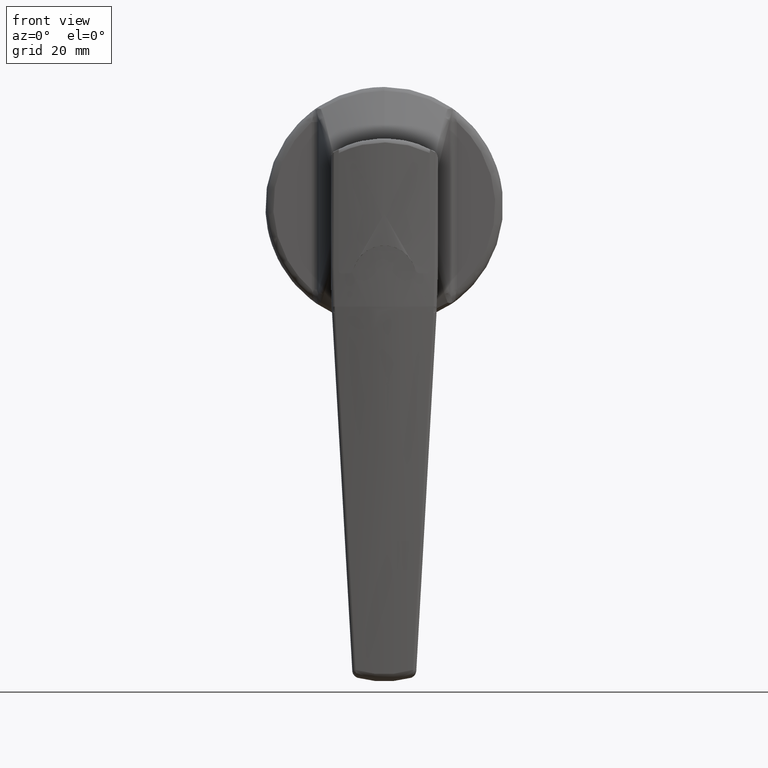
[diagram: clean part render]
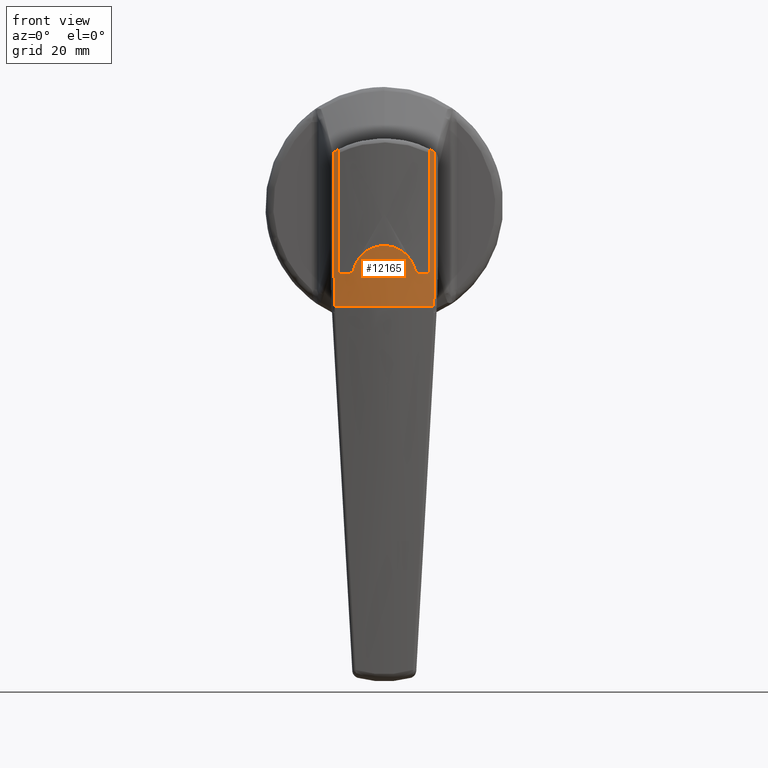
[diagram: same view with one face highlighted and labeled with its STEP entity id]
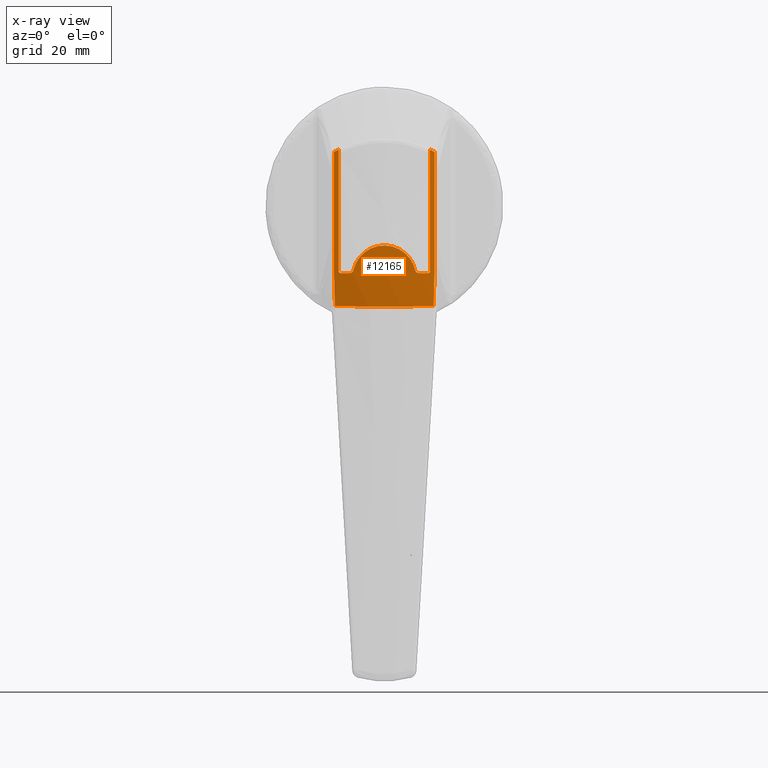
[diagram: x-ray of the same camera — body ghosted, the highlighted face saturated]
A machine part, front view. The second image highlights one B-rep face of the part: STEP entity #12165.
The next image is the same camera in x-ray: the body ghosted, the highlighted face saturated — about 0% of this face is hidden behind the body in this view.
In plain terms, the highlighted face is a freeform B-spline surface patch.
Its self-contained STEP definition (entity closure, byte-faithful):
#6346=CARTESIAN_POINT('',(-46.737944228150198,12.711864406779300,13.580230435014760));
#6347=VERTEX_POINT('',#6346);
#6355=CARTESIAN_POINT('',(-46.987604807803102,11.500000000000000,14.212189298501320));
#6356=VERTEX_POINT('',#6355);
#6357=CARTESIAN_POINT('',(-46.987604807803102,11.500000000000000,14.212189298501320));
#6358=CARTESIAN_POINT('',(-46.907535436885517,11.910008127982939,14.011899635421020));
#6359=CARTESIAN_POINT('',(-46.824209518062418,12.313935425094630,13.801235703954630));
#6360=CARTESIAN_POINT('',(-46.737944228150099,12.711864406779320,13.580230435014800));
#6361=QUASI_UNIFORM_CURVE('',3,(#6357,#6358,#6359,#6360),.UNSPECIFIED.,.F.,.U.);
#6362=EDGE_CURVE('',#6356,#6347,#6361,.T.);
#6417=CARTESIAN_POINT('',(-46.987604807803102,-11.500000000000000,14.212189298501320));
#6418=VERTEX_POINT('',#6417);
#6438=CARTESIAN_POINT('',(-46.737944228150099,-12.711864406779659,13.580230435014540));
#6439=VERTEX_POINT('',#6438);
#6440=CARTESIAN_POINT('',(-46.737944228150099,-12.711864406779659,13.580230435014540));
#6441=CARTESIAN_POINT('',(-46.824209518062453,-12.313935425094851,13.801235703954440));
#6442=CARTESIAN_POINT('',(-46.907535436885503,-11.910008127983071,14.011899635420839));
#6443=CARTESIAN_POINT('',(-46.987604807803102,-11.500000000000000,14.212189298501199));
#6444=QUASI_UNIFORM_CURVE('',3,(#6440,#6441,#6442,#6443),.UNSPECIFIED.,.F.,.U.);
#6445=EDGE_CURVE('',#6439,#6418,#6444,.T.);
#7847=CARTESIAN_POINT('',(-46.789193708711807,-12.473112755895860,-25.348999612156948));
#7848=VERTEX_POINT('',#7847);
#7862=CARTESIAN_POINT('',(-46.789193708711807,12.473112755895860,-25.348999612156948));
#7863=VERTEX_POINT('',#7862);
#7864=CARTESIAN_POINT('',(-46.789193708711807,12.473112755895860,-25.348999612156948));
#7865=CARTESIAN_POINT('',(-49.440082773459139,7.459311E-014,-25.459076386904989));
#7866=CARTESIAN_POINT('',(-46.789193708711807,-12.473112755895860,-25.348999612156948));
#7874=(BOUNDED_CURVE()B_SPLINE_CURVE(2,(#7864,#7865,#7866),.UNSPECIFIED.,.F.,.U.)CURVE()GEOMETRIC_REPRESENTATION_ITEM()QUASI_UNIFORM_CURVE()RATIONAL_B_SPLINE_CURVE((1.0,0.978153228478532,1.0))REPRESENTATION_ITEM(''));
#7875=EDGE_CURVE('',#7863,#7848,#7874,.T.);
#8068=CARTESIAN_POINT('',(-46.737944228150099,12.711864406779640,-15.685443348486450));
#8069=VERTEX_POINT('',#8068);
#8093=CARTESIAN_POINT('',(-46.737944228150099,12.711864406779640,-15.685443348486450));
#8094=CARTESIAN_POINT('',(-46.737944228150099,12.711864406779640,-18.908685599115561));
#8095=CARTESIAN_POINT('',(-46.755367672646017,12.632272928814530,-22.129869028054429));
#8096=CARTESIAN_POINT('',(-46.789193708711807,12.473112755895860,-25.348999612156948));
#8097=QUASI_UNIFORM_CURVE('',3,(#8093,#8094,#8095,#8096),.UNSPECIFIED.,.F.,.U.);
#8098=EDGE_CURVE('',#8069,#7863,#8097,.T.);
#8263=CARTESIAN_POINT('',(-46.737944228150099,-12.711864406779659,-15.685443348486549));
#8264=VERTEX_POINT('',#8263);
#8278=CARTESIAN_POINT('',(-46.789193708711807,-12.473112755895860,-25.348999612156948));
#8279=CARTESIAN_POINT('',(-46.755367672646017,-12.632272928814530,-22.129869028054461));
#8280=CARTESIAN_POINT('',(-46.737944228150099,-12.711864406779640,-18.908685599115628));
#8281=CARTESIAN_POINT('',(-46.737944228150099,-12.711864406779640,-15.685443348486549));
#8282=QUASI_UNIFORM_CURVE('',3,(#8278,#8279,#8280,#8281),.UNSPECIFIED.,.F.,.U.);
#8283=EDGE_CURVE('',#7848,#8264,#8282,.T.);
#8310=CARTESIAN_POINT('',(-46.737944228150198,12.711864406779300,13.580230435014760));
#8311=CARTESIAN_POINT('',(-46.737944228150099,12.711864406779640,-15.685443348486450));
#8312=QUASI_UNIFORM_CURVE('',1,(#8310,#8311),.UNSPECIFIED.,.F.,.U.);
#8313=EDGE_CURVE('',#6347,#8069,#8312,.T.);
#8544=CARTESIAN_POINT('',(-46.737944228150099,-12.711864406779659,-15.685443348486549));
#8545=CARTESIAN_POINT('',(-46.737944228150099,-12.711864406779659,13.580230435014540));
#8546=QUASI_UNIFORM_CURVE('',1,(#8544,#8545),.UNSPECIFIED.,.F.,.U.);
#8547=EDGE_CURVE('',#8264,#6439,#8546,.T.);
#11925=CARTESIAN_POINT('',(-46.456397862511935,-13.947430892899519,-26.393820640584902));
#11926=CARTESIAN_POINT('',(-46.456397862511935,-13.947430892899519,15.227339546978479));
#11927=CARTESIAN_POINT('',(-49.790181097762535,0.001201106610649,-26.393820640584909));
#11928=CARTESIAN_POINT('',(-49.790181097762535,0.001201106610649,15.227339546978479));
#11929=CARTESIAN_POINT('',(-46.455854705859217,13.949703278157740,-26.393820640584899));
#11930=CARTESIAN_POINT('',(-46.455854705859217,13.949703278157740,15.227339546978477));
#11938=(BOUNDED_SURFACE()B_SPLINE_SURFACE(1,2,((#11925,#11927,#11929),(#11926,#11928,#11930)),.UNSPECIFIED.,.F.,.F.,.U.)B_SPLINE_SURFACE_WITH_KNOTS((2,2),(3,3),(0.0,41.621160187563383),(0.0,28.284596819175309),.UNSPECIFIED.)GEOMETRIC_REPRESENTATION_ITEM()RATIONAL_B_SPLINE_SURFACE(((0.998720601012470,0.970422249453974,0.996797802733869),(0.998720601012470,0.970422249453974,0.996797802733869)))REPRESENTATION_ITEM('')SURFACE());
#11939=CARTESIAN_POINT('',(-46.987604807803102,11.500000000000000,-16.500000000000000));
#11940=VERTEX_POINT('',#11939);
#11941=CARTESIAN_POINT('',(-46.987604807803102,11.500000000000000,-16.500000000000000));
#11942=CARTESIAN_POINT('',(-46.987604807803102,11.500000000000000,14.212189298501320));
#11943=QUASI_UNIFORM_CURVE('',1,(#11941,#11942),.UNSPECIFIED.,.F.,.U.);
#11944=EDGE_CURVE('',#11940,#6356,#11943,.T.);
#11945=ORIENTED_EDGE('',*,*,#11944,.T.);
#11946=ORIENTED_EDGE('',*,*,#6362,.T.);
#11947=ORIENTED_EDGE('',*,*,#8313,.T.);
#11948=ORIENTED_EDGE('',*,*,#8098,.T.);
#11949=ORIENTED_EDGE('',*,*,#7875,.T.);
#11950=ORIENTED_EDGE('',*,*,#8283,.T.);
#11951=ORIENTED_EDGE('',*,*,#8547,.T.);
#11952=ORIENTED_EDGE('',*,*,#6445,.T.);
#11953=CARTESIAN_POINT('',(-46.987604807803102,-11.500000000000000,-16.500000000000000));
#11954=VERTEX_POINT('',#11953);
#11955=CARTESIAN_POINT('',(-46.987604807803102,-11.500000000000000,14.212189298501320));
#11956=CARTESIAN_POINT('',(-46.987604807803102,-11.500000000000000,-16.500000000000000));
#11957=QUASI_UNIFORM_CURVE('',1,(#11955,#11956),.UNSPECIFIED.,.F.,.U.);
#11958=EDGE_CURVE('',#6418,#11954,#11957,.T.);
#11959=ORIENTED_EDGE('',*,*,#11958,.T.);
#11960=CARTESIAN_POINT('',(-47.083048412234497,-11.0,-17.0));
#11961=VERTEX_POINT('',#11960);
#11962=CARTESIAN_POINT('',(-46.987604807803137,-11.500000000000000,-16.500000000000000));
#11963=CARTESIAN_POINT('',(-46.987604807803130,-11.500000000000000,-16.533168155083150));
#11964=CARTESIAN_POINT('',(-46.988253140221090,-11.496681493384960,-16.566212240134170));
#11965=CARTESIAN_POINT('',(-46.990142642642482,-11.486997446939609,-16.614466712750801));
#11966=CARTESIAN_POINT('',(-46.990926280092900,-11.482979838626120,-16.630392546573809));
#11967=CARTESIAN_POINT('',(-46.992804620393592,-11.473342496664980,-16.661921652573930));
#11968=CARTESIAN_POINT('',(-46.993906973961103,-11.467683437488811,-16.677608474726568));
#11969=CARTESIAN_POINT('',(-46.997624401956173,-11.448581052962879,-16.723305420684120));
#11970=CARTESIAN_POINT('',(-47.000645243871013,-11.433037067885669,-16.752091912400591));
#11971=CARTESIAN_POINT('',(-47.007730366214084,-11.396475325354540,-16.806396394962171));
#11972=CARTESIAN_POINT('',(-47.011837856456111,-11.375232579993741,-16.832059675884459));
#11973=CARTESIAN_POINT('',(-47.020759452422247,-11.328930285959039,-16.877978814771630));
#11974=CARTESIAN_POINT('',(-47.025599489985282,-11.303738085714810,-16.898513610972849));
#11975=CARTESIAN_POINT('',(-47.036029574865957,-11.249230547691550,-16.934688459637108));
#11976=CARTESIAN_POINT('',(-47.041560657236403,-11.220220761787310,-16.950054188585561));
#11977=CARTESIAN_POINT('',(-47.052915465305077,-11.160407017421550,-16.974674146491580));
#11978=CARTESIAN_POINT('',(-47.058809707825709,-11.129232763415629,-16.984114553352271));
#11979=CARTESIAN_POINT('',(-47.070876045104242,-11.065118279477890,-16.996817489210411));
#11980=CARTESIAN_POINT('',(-47.076945364277861,-11.032725124826371,-17.0));
#11981=CARTESIAN_POINT('',(-47.083048412234497,-11.0,-17.0));
#11982=B_SPLINE_CURVE_WITH_KNOTS('',3,(#11962,#11963,#11964,#11965,#11966,#11967,#11968,#11969,#11970,#11971,#11972,#11973,#11974,#11975,#11976,#11977,#11978,#11979,#11980,#11981),.UNSPECIFIED.,.F.,.U.,(4,2,2,2,2,2,2,2,2,4),(0.0,0.125000000000000,0.187500000000000,0.250000000000000,0.375000000000000,0.500000000000000,0.625000000000000,0.750000000000000,0.875000000000000,1.0),.UNSPECIFIED.);
#11983=EDGE_CURVE('',#11954,#11961,#11982,.T.);
#11984=ORIENTED_EDGE('',*,*,#11983,.T.);
#11985=CARTESIAN_POINT('',(-47.454865064278401,-8.774963999999999,-17.0));
#11986=VERTEX_POINT('',#11985);
#11987=CARTESIAN_POINT('',(-47.083048412234511,-10.999999999999989,-17.0));
#11988=CARTESIAN_POINT('',(-47.289874739325832,-9.890977521477094,-16.999999999999996));
#11989=CARTESIAN_POINT('',(-47.454865064278458,-8.774964000000022,-17.0));
#11997=(BOUNDED_CURVE()B_SPLINE_CURVE(2,(#11987,#11988,#11989),.UNSPECIFIED.,.F.,.U.)CURVE()GEOMETRIC_REPRESENTATION_ITEM()QUASI_UNIFORM_CURVE()RATIONAL_B_SPLINE_CURVE((1.0,0.999823281856737,1.0))REPRESENTATION_ITEM(''));
#11998=EDGE_CURVE('',#11961,#11986,#11997,.T.);
#11999=ORIENTED_EDGE('',*,*,#11998,.T.);
#12000=CARTESIAN_POINT('',(-47.590843779780101,-7.799968356974010,-16.222222277616101));
#12001=VERTEX_POINT('',#12000);
#12002=CARTESIAN_POINT('',(-47.454865064278401,-8.774963999999999,-17.0));
#12003=CARTESIAN_POINT('',(-47.471530827238936,-8.662234863821755,-17.0));
#12004=CARTESIAN_POINT('',(-47.487415349799711,-8.552571933962362,-16.981467891168190));
#12005=CARTESIAN_POINT('',(-47.510145720473027,-8.392704130729717,-16.925776298817990));
#12006=CARTESIAN_POINT('',(-47.517343816052282,-8.341563738080323,-16.902924314429558));
#12007=CARTESIAN_POINT('',(-47.530975062113967,-8.243884698236004,-16.849154214414561));
#12008=CARTESIAN_POINT('',(-47.537419439995453,-8.197265971100762,-16.818208582672721));
#12009=CARTESIAN_POINT('',(-47.549570394716667,-8.108673070888017,-16.747834670991161));
#12010=CARTESIAN_POINT('',(-47.555136017590797,-8.067727125067975,-16.709186329380600));
#12011=CARTESIAN_POINT('',(-47.565222367749953,-7.993043762474335,-16.625883367083478));
#12012=CARTESIAN_POINT('',(-47.569760933991347,-7.959174925207949,-16.581125349781640));
#12013=CARTESIAN_POINT('',(-47.577825417902041,-7.898684358404784,-16.485131401204519));
#12014=CARTESIAN_POINT('',(-47.581261399860352,-7.872738546361891,-16.434898576227148));
#12015=CARTESIAN_POINT('',(-47.586934724163463,-7.829755236340550,-16.331252070028651));
#12016=CARTESIAN_POINT('',(-47.589187219837939,-7.812603043267405,-16.277658385959679));
#12017=CARTESIAN_POINT('',(-47.590843779780101,-7.799968356974010,-16.222222277616101));
#12018=B_SPLINE_CURVE_WITH_KNOTS('',3,(#12002,#12003,#12004,#12005,#12006,#12007,#12008,#12009,#12010,#12011,#12012,#12013,#12014,#12015,#12016,#12017),.UNSPECIFIED.,.F.,.U.,(4,2,2,2,2,2,2,4),(0.0,0.250000000000005,0.375000000000004,0.500000000000003,0.625000000000002,0.750000000000002,0.875000000000001,1.0),.UNSPECIFIED.);
#12019=EDGE_CURVE('',#11986,#12001,#12018,.T.);
#12020=ORIENTED_EDGE('',*,*,#12019,.T.);
#12021=CARTESIAN_POINT('',(-47.590843832434203,7.799967955378261,-16.222222215297901));
#12022=VERTEX_POINT('',#12021);
#12023=CARTESIAN_POINT('',(-47.590843832434203,7.799967955378261,-16.222222215297901));
#12024=CARTESIAN_POINT('',(-47.597358556445400,7.750279749943561,-16.004214410774289));
#12025=CARTESIAN_POINT('',(-47.605008431222693,7.691467744428758,-15.788286963392199));
#12026=CARTESIAN_POINT('',(-47.618080542453427,7.589417939334571,-15.467546052328141));
#12027=CARTESIAN_POINT('',(-47.622704112074103,7.553093005355643,-15.361158138710911));
#12028=CARTESIAN_POINT('',(-47.632465676715192,7.475764122268892,-15.149447228230780));
#12029=CARTESIAN_POINT('',(-47.637610702028532,7.434703591847748,-15.043988443142149));
#12030=CARTESIAN_POINT('',(-47.664498849830380,7.218099919474414,-14.520893402170730));
#12031=CARTESIAN_POINT('',(-47.689334624132812,7.012015678141431,-14.123001897269740));
#12032=CARTESIAN_POINT('',(-47.729827502270098,6.655671510362775,-13.555688322595490));
#12033=CARTESIAN_POINT('',(-47.743866620151877,6.528976039703494,-13.371532103213170));
#12034=CARTESIAN_POINT('',(-47.765523253139428,6.326920523560443,-13.102792888982350));
#12035=CARTESIAN_POINT('',(-47.772841765490767,6.257563972999885,-13.014463985564710));
#12036=CARTESIAN_POINT('',(-47.787641605497889,6.114784609380857,-12.840340572450881));
#12037=CARTESIAN_POINT('',(-47.795135718518203,6.041233548419172,-12.754403618972029));
#12038=CARTESIAN_POINT('',(-47.832773087075410,5.664584640519917,-12.332811303867590));
#12039=CARTESIAN_POINT('',(-47.863010034259567,5.339028566039022,-12.025549572746360));
#12040=CARTESIAN_POINT('',(-47.906690286444132,4.815645914864320,-11.607866130405000));
#12041=CARTESIAN_POINT('',(-47.920972817342943,4.635310959345009,-11.475880420937060));
#12042=CARTESIAN_POINT('',(-47.941750410587851,4.355873267519017,-11.288895093187170));
#12043=CARTESIAN_POINT('',(-47.948568537129631,4.261236186628613,-11.228401295971761));
#12044=CARTESIAN_POINT('',(-47.961950055306588,4.068934179575344,-11.111135253983161));
#12045=CARTESIAN_POINT('',(-47.968523417176591,3.971114337486013,-11.054277960243819));
#12046=CARTESIAN_POINT('',(-48.000540232206589,3.476032744429412,-10.780439340325371));
#12047=CARTESIAN_POINT('',(-48.023053453218402,3.066900519645967,-10.597715139438041));
#12048=CARTESIAN_POINT('',(-48.050970040059823,2.434285263587317,-10.376078420913620));
#12049=CARTESIAN_POINT('',(-48.059300967155863,2.220243382148899,-10.310989885380730));
#12050=CARTESIAN_POINT('',(-48.070186092346667,1.894358291295092,-10.226712666517789));
#12051=CARTESIAN_POINT('',(-48.073545890598403,1.784925168758568,-10.200849131355790));
#12052=CARTESIAN_POINT('',(-48.079702723028767,1.564425072310910,-10.153645029501501));
#12053=CARTESIAN_POINT('',(-48.082502776354929,1.453221582618008,-10.132281505141410));
#12054=CARTESIAN_POINT('',(-48.094997425920617,0.894516853728764,-10.037249462728161));
#12055=CARTESIAN_POINT('',(-48.099999505135237,0.447376472103989,-10.000003711485670));
#12056=CARTESIAN_POINT('',(-48.100000247377309,-0.223588675312950,-9.999998144670176));
#12057=CARTESIAN_POINT('',(-48.098749996372668,-0.447286385760757,-10.009358626373530));
#12058=CARTESIAN_POINT('',(-48.094996356114777,-0.782897687634330,-10.037608721062719));
#12059=CARTESIAN_POINT('',(-48.093432091046417,-0.894778924874433,-10.049396754409081));
#12060=CARTESIAN_POINT('',(-48.089676941302500,-1.118563304225249,-10.077782038618160));
#12061=CARTESIAN_POINT('',(-48.087482492978388,-1.230622947604273,-10.094406333849580));
#12062=CARTESIAN_POINT('',(-48.074981568126660,-1.789247008060825,-10.189487852943980));
#12063=CARTESIAN_POINT('',(-48.060278276504583,-2.223368740396586,-10.302177318735170));
#12064=CARTESIAN_POINT('',(-48.032350758538122,-2.856206827851718,-10.523901873067400));
#12065=CARTESIAN_POINT('',(-48.022061692321010,-3.064078463156043,-10.606641077332251));
#12066=CARTESIAN_POINT('',(-48.005303023683410,-3.371228739249628,-10.744147187642289));
#12067=CARTESIAN_POINT('',(-47.999495974488738,-3.472834956695392,-10.792218390453639));
#12068=CARTESIAN_POINT('',(-47.987464888919192,-3.674472725808426,-10.892894502355389));
#12069=CARTESIAN_POINT('',(-47.981228723311112,-3.774689901731595,-10.945603310843429));
#12070=CARTESIAN_POINT('',(-47.949211905143670,-4.269570308237114,-11.219475431907849));
#12071=CARTESIAN_POINT('',(-47.921225857731962,-4.641504273962630,-11.468859968508170));
#12072=CARTESIAN_POINT('',(-47.877536968054351,-5.164952109617704,-11.886645134265660));
#12073=CARTESIAN_POINT('',(-47.862687518611573,-5.333660260106096,-12.033232538132870));
#12074=CARTESIAN_POINT('',(-47.840212481011918,-5.577965626275286,-12.264247137415239));
#12075=CARTESIAN_POINT('',(-47.832687369135577,-5.657939335882466,-12.343110056572510));
#12076=CARTESIAN_POINT('',(-47.817609454106623,-5.814923813276502,-12.504607165418740));
#12077=CARTESIAN_POINT('',(-47.810041304921768,-5.892087156819278,-12.587414288164201));
#12078=CARTESIAN_POINT('',(-47.772419475500563,-6.268487307493433,-13.008961100114220));
#12079=CARTESIAN_POINT('',(-47.743293836233534,-6.537172711973367,-13.366993604562261));
#12080=CARTESIAN_POINT('',(-47.702813245418270,-6.893397921718830,-13.934177952193849));
#12081=CARTESIAN_POINT('',(-47.689853117564986,-7.004295476946335,-14.128289834871170));
#12082=CARTESIAN_POINT('',(-47.671430999011513,-7.158721684445018,-14.427147144446071));
#12083=CARTESIAN_POINT('',(-47.665460021220603,-7.208207755344973,-14.528049521639209));
#12084=CARTESIAN_POINT('',(-47.653894901412748,-7.303142382244063,-14.732461092339429));
#12085=CARTESIAN_POINT('',(-47.648290872246669,-7.348670379552937,-14.836164713335609));
#12086=CARTESIAN_POINT('',(-47.621425021002331,-7.565077522235559,-15.359060171463810));
#12087=CARTESIAN_POINT('',(-47.603869852650277,-7.700617689033234,-15.786322976806440));
#12088=CARTESIAN_POINT('',(-47.590843779780123,-7.799968356973992,-16.222222277616108));
#12089=B_SPLINE_CURVE_WITH_KNOTS('',3,(#12023,#12024,#12025,#12026,#12027,#12028,#12029,#12030,#12031,#12032,#12033,#12034,#12035,#12036,#12037,#12038,#12039,#12040,#12041,#12042,#12043,#12044,#12045,#12046,#12047,#12048,#12049,#12050,#12051,#12052,#12053,#12054,#12055,#12056,#12057,#12058,#12059,#12060,#12061,#12062,#12063,#12064,#12065,#12066,#12067,#12068,#12069,#12070,#12071,#12072,#12073,#12074,#12075,#12076,#12077,#12078,#12079,#12080,#12081,#12082,#12083,#12084,#12085,#12086,#12087,#12088),.UNSPECIFIED.,.F.,.U.,(4,2,2,2,2,2,2,2,2,2,2,2,2,2,2,2,2,2,2,2,2,2,2,2,2,2,2,2,2,2,2,2,4),(0.0,0.031250000000000,0.046875000000000,0.062500000000001,0.125000000000001,0.156250000000001,0.171875000000001,0.187500000000001,0.250000000000001,0.281250000000001,0.296875000000001,0.312500000000001,0.375000000000001,0.406250000000001,0.421875000000001,0.437500000000001,0.500000000000001,0.531250000000001,0.546875000000001,0.562500000000001,0.625000000000001,0.656250000000001,0.671875000000001,0.687500000000001,0.750000000000001,0.781250000000001,0.796875000000001,0.812500000000001,0.875000000000000,0.906250000000000,0.921875000000000,0.937500000000000,1.0),.UNSPECIFIED.);
#12090=EDGE_CURVE('',#12022,#12001,#12089,.T.);
#12091=ORIENTED_EDGE('',*,*,#12090,.F.);
#12092=CARTESIAN_POINT('',(-47.454865064278401,8.774963999999999,-17.0));
#12093=VERTEX_POINT('',#12092);
#12094=CARTESIAN_POINT('',(-47.590843832434189,7.799967955378232,-16.222222215297911));
#12095=CARTESIAN_POINT('',(-47.590026221307198,7.806203926621936,-16.249582428986880));
#12096=CARTESIAN_POINT('',(-47.589055777245072,7.813598245123430,-16.276719188429091));
#12097=CARTESIAN_POINT('',(-47.586800657193912,7.830748519499581,-16.330537063394740));
#12098=CARTESIAN_POINT('',(-47.585509034823161,7.840557013912338,-16.357326163606601));
#12099=CARTESIAN_POINT('',(-47.581219048206293,7.873059012927787,-16.435615662807511));
#12100=CARTESIAN_POINT('',(-47.577800535503187,7.898870178234260,-16.485384107157799));
#12101=CARTESIAN_POINT('',(-47.571832123066272,7.943639630814433,-16.556492877045692));
#12102=CARTESIAN_POINT('',(-47.569701759596107,7.959576987005726,-16.579601974251968));
#12103=CARTESIAN_POINT('',(-47.565149087727278,7.993518446951077,-16.624609699841880));
#12104=CARTESIAN_POINT('',(-47.562716527272549,8.011598039511913,-16.646579990255251));
#12105=CARTESIAN_POINT('',(-47.555098755746151,8.068002958750716,-16.709492198602110));
#12106=CARTESIAN_POINT('',(-47.549566750714263,8.108696507837104,-16.747801043955921));
#12107=CARTESIAN_POINT('',(-47.540576202652197,8.174251474762466,-16.799952595555769));
#12108=CARTESIAN_POINT('',(-47.537463354169752,8.196859584039283,-16.816446444695920));
#12109=CARTESIAN_POINT('',(-47.530996425813363,8.243616976405729,-16.847620111445810));
#12110=CARTESIAN_POINT('',(-47.527630269463067,8.267851987673666,-16.862336908584322));
#12111=CARTESIAN_POINT('',(-47.517340182794328,8.341591535098399,-16.902960937402511));
#12112=CARTESIAN_POINT('',(-47.510178575577932,8.392466777678646,-16.925631887721710));
#12113=CARTESIAN_POINT('',(-47.498973016591002,8.471287317959334,-16.953181568195419));
#12114=CARTESIAN_POINT('',(-47.495160322471037,8.497980996406348,-16.961282990687430));
#12115=CARTESIAN_POINT('',(-47.487374127690707,8.552224562358678,-16.975280326564601));
#12116=CARTESIAN_POINT('',(-47.483389049045023,8.579853537357117,-16.981182743687580));
#12117=CARTESIAN_POINT('',(-47.471356416137709,8.662861190098063,-16.995280682312341));
#12118=CARTESIAN_POINT('',(-47.463186641943693,8.718675892214746,-17.000000000000011));
#12119=CARTESIAN_POINT('',(-47.454865064278401,8.774963999999999,-17.0));
#12120=B_SPLINE_CURVE_WITH_KNOTS('',3,(#12094,#12095,#12096,#12097,#12098,#12099,#12100,#12101,#12102,#12103,#12104,#12105,#12106,#12107,#12108,#12109,#12110,#12111,#12112,#12113,#12114,#12115,#12116,#12117,#12118,#12119),.UNSPECIFIED.,.F.,.U.,(4,2,2,2,2,2,2,2,2,2,2,2,4),(0.0,0.062499999999997,0.124999999999995,0.249999999999998,0.312500000000001,0.375000000000004,0.500000000000003,0.562500000000002,0.625000000000000,0.749999999999999,0.812499999999999,0.874999999999999,1.0),.UNSPECIFIED.);
#12121=EDGE_CURVE('',#12022,#12093,#12120,.T.);
#12122=ORIENTED_EDGE('',*,*,#12121,.T.);
#12123=CARTESIAN_POINT('',(-47.083048412234412,11.0,-17.0));
#12124=VERTEX_POINT('',#12123);
#12125=CARTESIAN_POINT('',(-47.454865064278458,8.774964000000010,-17.0));
#12126=CARTESIAN_POINT('',(-47.289874739325846,9.890977521477039,-17.000000000000004));
#12127=CARTESIAN_POINT('',(-47.083048412234497,11.000000000000011,-17.0));
#12135=(BOUNDED_CURVE()B_SPLINE_CURVE(2,(#12125,#12126,#12127),.UNSPECIFIED.,.F.,.U.)CURVE()GEOMETRIC_REPRESENTATION_ITEM()QUASI_UNIFORM_CURVE()RATIONAL_B_SPLINE_CURVE((1.0,0.999823281856737,1.0))REPRESENTATION_ITEM(''));
#12136=EDGE_CURVE('',#12093,#12124,#12135,.T.);
#12137=ORIENTED_EDGE('',*,*,#12136,.T.);
#12138=CARTESIAN_POINT('',(-47.083048412234497,11.0,-17.0));
#12139=CARTESIAN_POINT('',(-47.076936519154408,11.032772553221310,-17.000000000000011));
#12140=CARTESIAN_POINT('',(-47.070896686489817,11.065007261459840,-16.996809062092758));
#12141=CARTESIAN_POINT('',(-47.061942890311833,11.112585253927589,-16.987427797374199));
#12142=CARTESIAN_POINT('',(-47.058976121448580,11.128314636763520,-16.983529294751609));
#12143=CARTESIAN_POINT('',(-47.053079969047587,11.159507789657621,-16.974154500062241));
#12144=CARTESIAN_POINT('',(-47.050138337894332,11.175035818691580,-16.968645183517779));
#12145=CARTESIAN_POINT('',(-47.041550226127633,11.220276260615750,-16.950046389216599));
#12146=CARTESIAN_POINT('',(-47.036090268563399,11.248912235670620,-16.934857358722489));
#12147=CARTESIAN_POINT('',(-47.025710392698912,11.303159617816970,-16.898939180360511));
#12148=CARTESIAN_POINT('',(-47.020754748651683,11.328954804937929,-16.877961032927910));
#12149=CARTESIAN_POINT('',(-47.011823097508731,11.375309070566731,-16.831977269785170));
#12150=CARTESIAN_POINT('',(-47.007798097725043,11.396125417856380,-16.806867074189839));
#12151=CARTESIAN_POINT('',(-47.002449827421700,11.423724967957360,-16.765947059586999));
#12152=CARTESIAN_POINT('',(-47.000776736868247,11.432347232905229,-16.751689586730048));
#12153=CARTESIAN_POINT('',(-46.997738920274621,11.447987313902990,-16.722663747500860));
#12154=CARTESIAN_POINT('',(-46.996365654015747,11.455049286929331,-16.707843111757921));
#12155=CARTESIAN_POINT('',(-46.992677590601652,11.474000691976270,-16.662473981198389));
#12156=CARTESIAN_POINT('',(-46.990787805549971,11.483690876311041,-16.630965062422451));
#12157=CARTESIAN_POINT('',(-46.988232795680823,11.496785755274511,-16.565670577568529));
#12158=CARTESIAN_POINT('',(-46.987604807803130,11.500000000000000,-16.532896465663171));
#12159=CARTESIAN_POINT('',(-46.987604807803137,11.500000000000000,-16.500000000000000));
#12160=B_SPLINE_CURVE_WITH_KNOTS('',3,(#12138,#12139,#12140,#12141,#12142,#12143,#12144,#12145,#12146,#12147,#12148,#12149,#12150,#12151,#12152,#12153,#12154,#12155,#12156,#12157,#12158,#12159),.UNSPECIFIED.,.F.,.U.,(4,2,2,2,2,2,2,2,2,2,4),(0.0,0.124999999999989,0.187499999999986,0.249999999999983,0.374999999999983,0.499999999999983,0.624999999999983,0.687499999999985,0.749999999999987,0.874999999999994,1.0),.UNSPECIFIED.);
#12161=EDGE_CURVE('',#12124,#11940,#12160,.T.);
#12162=ORIENTED_EDGE('',*,*,#12161,.T.);
#12163=EDGE_LOOP('',(#11945,#11946,#11947,#11948,#11949,#11950,#11951,#11952,#11959,#11984,#11999,#12020,#12091,#12122,#12137,#12162));
#12164=FACE_OUTER_BOUND('',#12163,.T.);
#12165=ADVANCED_FACE('',(#12164),#11938,.T.);